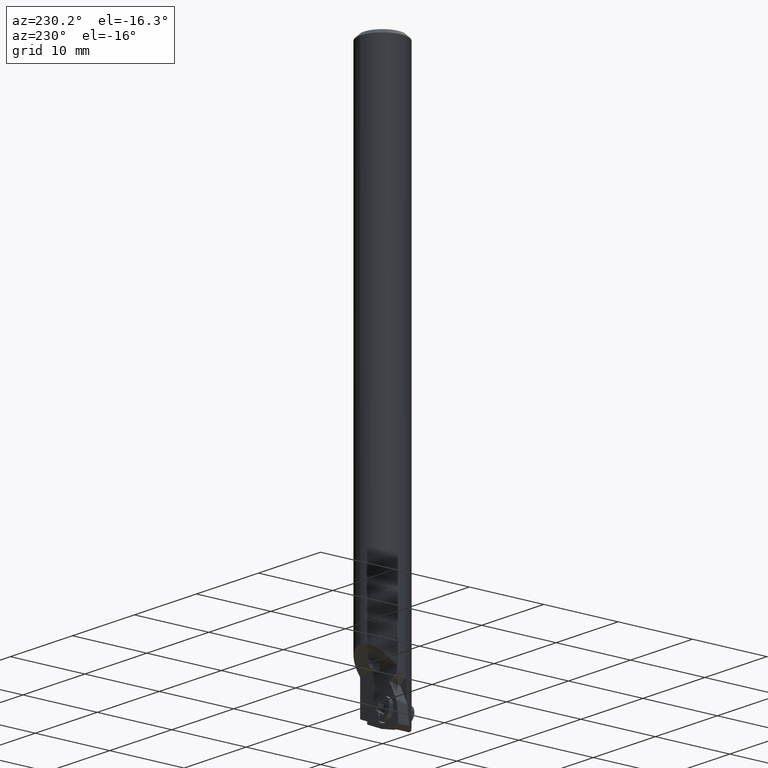
[diagram: clean part render]
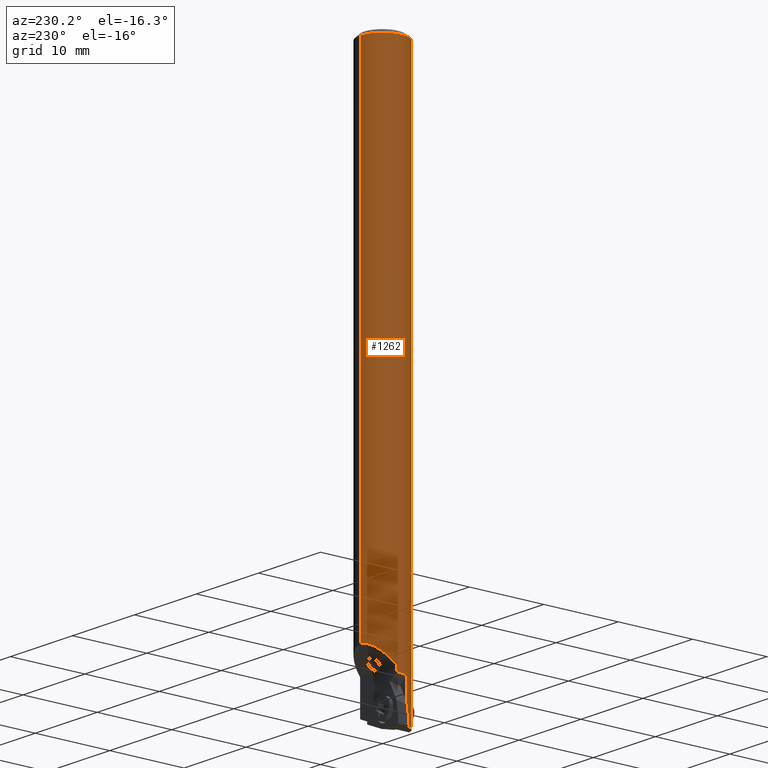
[diagram: same view with one face highlighted and labeled with its STEP entity id]
A machine part, auxiliary view. The second image highlights one B-rep face of the part: STEP entity #1262.
In plain terms, the highlighted cylindrical surface (edge-blend (fillet) strip) has radius 3 mm, axis along (-0, -0, 1).
Its self-contained STEP definition (entity closure, byte-faithful):
#574=VERTEX_POINT('NONE',#1597);
#608=VERTEX_POINT('NONE',#1633);
#616=EDGE_CURVE('NONE',#700,#1166,#1641,.T.);
#634=EDGE_CURVE('NONE',#960,#608,#1660,.T.);
#636=EDGE_CURVE('NONE',#870,#574,#1662,.T.);
#668=EDGE_CURVE('NONE',#1002,#870,#1699,.T.);
#688=EDGE_CURVE('NONE',#1072,#1002,#1719,.T.);
#700=VERTEX_POINT('NONE',#1733);
#848=VERTEX_POINT('NONE',#1900);
#870=VERTEX_POINT('NONE',#1924);
#886=EDGE_CURVE('NONE',#1230,#960,#1941,.T.);
#960=VERTEX_POINT('NONE',#2020);
#1002=VERTEX_POINT('NONE',#2070);
#1072=VERTEX_POINT('NONE',#2147);
#1092=EDGE_CURVE('NONE',#1294,#1192,#2171,.T.);
#1144=EDGE_CURVE('NONE',#1072,#608,#2227,.T.);
#1166=VERTEX_POINT('NONE',#2251);
#1192=VERTEX_POINT('NONE',#2282);
#1230=VERTEX_POINT('NONE',#2321);
#1262=ADVANCED_FACE('NONE',(#2355,#2356),#2357,.T.);
#1278=EDGE_CURVE('NONE',#1192,#1294,#2374,.T.);
#1294=VERTEX_POINT('NONE',#2391);
#1306=EDGE_CURVE('NONE',#574,#1166,#2404,.T.);
#1320=EDGE_CURVE('NONE',#848,#700,#2418,.T.);
#1434=EDGE_CURVE('NONE',#1230,#848,#2544,.T.);
#1597=CARTESIAN_POINT('',(0.0,2.99999999999999,-0.5));
#1633=CARTESIAN_POINT('',(-2.99958330439413,-0.05,-69.2103974511725));
#1641=LINE('',#2800,#2801);
#1660=(B_SPLINE_CURVE(3,(#2828,#2829,#2830,#2831),.UNSPECIFIED.,.F.,.F.)B_SPLINE_CURVE_WITH_KNOTS((4,4),(5.99591720875879,6.26651786881151),.UNSPECIFIED.)RATIONAL_B_SPLINE_CURVE((1.0,0.993907243336521,0.993907243336521,1.0))BOUNDED_CURVE()REPRESENTATION_ITEM('')GEOMETRIC_REPRESENTATION_ITEM()CURVE());
#1662=LINE('',#2840,#2841);
#1699=(B_SPLINE_CURVE(3,(#2902,#2903,#2904,#2905),.UNSPECIFIED.,.F.,.F.)B_SPLINE_CURVE_WITH_KNOTS((4,4),(4.89676517142066,6.28318530717959),.UNSPECIFIED.)RATIONAL_B_SPLINE_CURVE((1.0,0.846132478187304,0.846132478187304,1.0))BOUNDED_CURVE()REPRESENTATION_ITEM('')GEOMETRIC_REPRESENTATION_ITEM()CURVE());
#1719=LINE('',#2940,#2941);
#1733=CARTESIAN_POINT('',(-3.67394039744206E-016,-3.0,-74.2129260060728));
#1900=CARTESIAN_POINT('',(-0.858196446337212,-2.87463021265244,-74.5772087849035));
#1924=CARTESIAN_POINT('',(0.0,3.0,-65.983437030462));
#1941=LINE('',#3242,#3243);
#2020=CARTESIAN_POINT('',(-2.87706447616316,-0.85,-69.3027220103998));
#2070=CARTESIAN_POINT('',(-2.94915242061173,0.55,-68.433437030462));
#2147=CARTESIAN_POINT('',(-2.94915242061172,0.55,-69.1628021451641));
#2171=B_SPLINE_CURVE_WITH_KNOTS('',3,(#3561,#3562,#3563,#3564,#3565,#3566,#3567,#3568,#3569,#3570,#3571,#3572,#3573,#3574,#3575,#3576,#3577,#3578),.UNSPECIFIED.,.F.,.F.,(4,2,2,2,2,2,2,2,4),(0.00258878492132161,0.00291969677650896,0.00325060863169631,0.00358152048688366,0.00391243234207101,0.00424334419725836,0.00457425605244571,0.00490516790763307,0.00523607976282042),.UNSPECIFIED.);
#2227=(B_SPLINE_CURVE(3,(#3664,#3665,#3666,#3667),.UNSPECIFIED.,.F.,.F.)B_SPLINE_CURVE_WITH_KNOTS((4,4),(0.00272934735534019,0.203772976759377),.UNSPECIFIED.)RATIONAL_B_SPLINE_CURVE((1.0,0.996634623513801,0.996634623513801,1.0))BOUNDED_CURVE()REPRESENTATION_ITEM('')GEOMETRIC_REPRESENTATION_ITEM()CURVE());
#2251=CARTESIAN_POINT('',(-3.67394039744205E-016,-2.99999999999999,-0.5));
#2282=CARTESIAN_POINT('',(-0.552130571626169,-2.94875428475751,-73.3547932892828));
#2321=CARTESIAN_POINT('',(-2.87706447616316,-0.85,-74.6830131750122));
#2355=FACE_OUTER_BOUND('',#3846,.T.);
#2356=FACE_BOUND('',#3847,.T.);
#2357=CYLINDRICAL_SURFACE('',#3848,3.0);
#2374=B_SPLINE_CURVE_WITH_KNOTS('',3,(#3868,#3869,#3870,#3871,#3872,#3873,#3874,#3875,#3876,#3877,#3878,#3879,#3880,#3881,#3882,#3883),.UNSPECIFIED.,.F.,.F.,(4,2,2,2,2,2,2,4),(1.0842021724855E-019,0.000323598115165201,0.000647196230330402,0.000970794345495603,0.0012943924606608,0.00161799057582601,0.00194158869099121,0.00258878492132161),.UNSPECIFIED.);
#2391=CARTESIAN_POINT('',(-1.64332794772617,-2.50987514753665,-72.1846273666921));
#2404=CIRCLE('',#3930,2.99999999999999);
#2418=(B_SPLINE_CURVE(3,(#3949,#3950,#3951,#3952),.UNSPECIFIED.,.F.,.F.)B_SPLINE_CURVE_WITH_KNOTS((4,4),(4.4222707860418,4.71238898038469),.UNSPECIFIED.)RATIONAL_B_SPLINE_CURVE((1.0,0.992998243367064,0.992998243367064,1.0))BOUNDED_CURVE()REPRESENTATION_ITEM('')GEOMETRIC_REPRESENTATION_ITEM()CURVE());
#2544=(B_SPLINE_CURVE(3,(#4163,#4164,#4165,#4166),.UNSPECIFIED.,.F.,.F.)B_SPLINE_CURVE_WITH_KNOTS((4,4),(3.42886075201059,4.4222707860418),.UNSPECIFIED.)RATIONAL_B_SPLINE_CURVE((1.0,0.919438329406348,0.919438329406348,1.0))BOUNDED_CURVE()REPRESENTATION_ITEM('')GEOMETRIC_REPRESENTATION_ITEM()CURVE());
#2800=CARTESIAN_POINT('',(-3.67394039744206E-016,-3.0,17.8735926305015));
#2801=VECTOR('',#4407,1000.0);
#2828=CARTESIAN_POINT('',(-2.87706447616316,-0.85,-69.3027220103998));
#2829=CARTESIAN_POINT('',(-2.95396951787015,-0.589693219372905,-69.2447699047482));
#2830=CARTESIAN_POINT('',(-2.99505947841136,-0.32139185779768,-69.2138063985638));
#2831=CARTESIAN_POINT('',(-2.99958330439413,-0.05,-69.2103974511725));
#2840=CARTESIAN_POINT('',(0.0,3.0,17.8735926305015));
#2841=VECTOR('',#4429,1000.0);
#2902=CARTESIAN_POINT('',(-2.94915242061173,0.55,-68.433437030462));
#2903=CARTESIAN_POINT('',(-2.67224124590977,2.03482411121219,-66.9486129192499));
#2904=CARTESIAN_POINT('',(-1.51042458928338,3.0,-65.983437030462));
#2905=CARTESIAN_POINT('',(0.0,3.0,-65.983437030462));
#2940=CARTESIAN_POINT('',(-2.94915242061173,0.55,17.8735926305015));
#2941=VECTOR('',#4493,1000.0);
#3242=CARTESIAN_POINT('',(-2.87706447616316,-0.85,17.8735926305015));
#3243=VECTOR('',#4808,1000.0);
#3561=CARTESIAN_POINT('',(-1.64332794772617,-2.50987514753665,-72.1846273666921));
#3562=CARTESIAN_POINT('',(-1.71594084702004,-2.46233222218749,-72.2523399907319));
#3563=CARTESIAN_POINT('',(-1.77804922805384,-2.41695636109029,-72.3358746565189));
#3564=CARTESIAN_POINT('',(-1.86702766013935,-2.34890289817869,-72.5263410196168));
#3565=CARTESIAN_POINT('',(-1.89402521903565,-2.32651823290054,-72.6345502289205));
#3566=CARTESIAN_POINT('',(-1.90070983113662,-2.32106026552141,-72.8567603660637));
#3567=CARTESIAN_POINT('',(-1.87989832215005,-2.33848409977098,-72.9686442079651));
#3568=CARTESIAN_POINT('',(-1.8005181755634,-2.40013747230656,-73.1665111225939));
#3569=CARTESIAN_POINT('',(-1.74250877480115,-2.44352064039819,-73.2538725996252));
#3570=CARTESIAN_POINT('',(-1.60230660937251,-2.53766496604106,-73.3986423009191));
#3571=CARTESIAN_POINT('',(-1.5205896389753,-2.58814925809764,-73.4561411287729));
#3572=CARTESIAN_POINT('',(-1.33862853872191,-2.68677931130743,-73.5391033887849));
#3573=CARTESIAN_POINT('',(-1.24101004139264,-2.73354818240423,-73.5635025304312));
#3574=CARTESIAN_POINT('',(-1.0350151242743,-2.81800200157599,-73.5738884054619));
#3575=CARTESIAN_POINT('',(-0.930804940511222,-2.85390741600062,-73.559507364643));
#3576=CARTESIAN_POINT('',(-0.727522651569301,-2.9123695108686,-73.4870597231587));
#3577=CARTESIAN_POINT('',(-0.633215716272321,-2.93357174225294,-73.430406409927));
#3578=CARTESIAN_POINT('',(-0.552130571626169,-2.94875428475751,-73.3547932892828));
#3664=CARTESIAN_POINT('',(-2.94915242061172,0.55,-69.1628021451641));
#3665=CARTESIAN_POINT('',(-2.98607262831619,0.352030327416167,-69.1632236884244));
#3666=CARTESIAN_POINT('',(-3.00293968691272,0.151354979318319,-69.1791423627595));
#3667=CARTESIAN_POINT('',(-2.99958330439413,-0.05,-69.2103974511725));
#3846=EDGE_LOOP('',(#5297,#5298,#5299,#5300,#5301,#5302,#5303,#5304,#5305,#5306));
#3847=EDGE_LOOP('',(#5307,#5308));
#3848=AXIS2_PLACEMENT_3D('',#5309,#5310,#5311);
#3868=CARTESIAN_POINT('',(-0.552130571626169,-2.94875428475751,-73.3547932892828));
#3869=CARTESIAN_POINT('',(-0.472837552763073,-2.96360126609371,-73.2808513529676));
#3870=CARTESIAN_POINT('',(-0.40939614804292,-2.97226011404865,-73.1915046827885));
#3871=CARTESIAN_POINT('',(-0.322066255684514,-2.98298654347388,-72.9934509245526));
#3872=CARTESIAN_POINT('',(-0.298754834664917,-2.98508735921993,-72.8849565551313));
#3873=CARTESIAN_POINT('',(-0.296771278525537,-2.98528521278161,-72.6691710962218));
#3874=CARTESIAN_POINT('',(-0.318192707561239,-2.98337340540632,-72.5600424735762));
#3875=CARTESIAN_POINT('',(-0.40157370448266,-2.97329817460323,-72.3610475229393));
#3876=CARTESIAN_POINT('',(-0.463842984298286,-2.96496934118697,-72.2699131628547));
#3877=CARTESIAN_POINT('',(-0.618657818124717,-2.9365721534358,-72.1200184238691));
#3878=CARTESIAN_POINT('',(-0.710181311900454,-2.91651473798045,-72.0619542293837));
#3879=CARTESIAN_POINT('',(-0.906744646176376,-2.86150831892209,-71.9857224554139));
#3880=CARTESIAN_POINT('',(-1.00991323035983,-2.82697446868307,-71.9682142285392));
#3881=CARTESIAN_POINT('',(-1.31148563802969,-2.70681416780113,-71.9730053509376));
#3882=CARTESIAN_POINT('',(-1.50131189735,-2.60285943196924,-72.0521952572427));
#3883=CARTESIAN_POINT('',(-1.64332794772617,-2.50987514753665,-72.1846273666921));
#3930=AXIS2_PLACEMENT_3D('',#5346,#5347,#5348);
#3949=CARTESIAN_POINT('',(-0.858196446337212,-2.87463021265244,-74.5772087849035));
#3950=CARTESIAN_POINT('',(-0.579222872619392,-2.95791540479049,-74.4587915284723));
#3951=CARTESIAN_POINT('',(-0.291140306488751,-3.0,-74.3365077341608));
#3952=CARTESIAN_POINT('',(-3.67394039744206E-016,-3.0,-74.2129260060728));
#4163=CARTESIAN_POINT('',(-2.87706447616316,-0.85,-74.6830131750122));
#4164=CARTESIAN_POINT('',(-2.58336950284357,-1.84409338184174,-74.6676212736739));
#4165=CARTESIAN_POINT('',(-1.85144873293561,-2.57810317452305,-74.6292629315119));
#4166=CARTESIAN_POINT('',(-0.858196446337212,-2.87463021265244,-74.5772087849035));
#4407=DIRECTION('',(0.0,-0.0,1.0));
#4429=DIRECTION('',(0.0,-0.0,1.0));
#4493=DIRECTION('',(0.0,-0.0,1.0));
#4808=DIRECTION('',(0.0,-0.0,1.0));
#5297=ORIENTED_EDGE('',*,*,#1320,.T.);
#5298=ORIENTED_EDGE('',*,*,#616,.T.);
#5299=ORIENTED_EDGE('',*,*,#1306,.F.);
#5300=ORIENTED_EDGE('',*,*,#636,.F.);
#5301=ORIENTED_EDGE('',*,*,#668,.F.);
#5302=ORIENTED_EDGE('',*,*,#688,.F.);
#5303=ORIENTED_EDGE('',*,*,#1144,.T.);
#5304=ORIENTED_EDGE('',*,*,#634,.F.);
#5305=ORIENTED_EDGE('',*,*,#886,.F.);
#5306=ORIENTED_EDGE('',*,*,#1434,.T.);
#5307=ORIENTED_EDGE('',*,*,#1278,.F.);
#5308=ORIENTED_EDGE('',*,*,#1092,.F.);
#5309=CARTESIAN_POINT('',(0.0,0.0,17.8735926305015));
#5310=DIRECTION('',(-0.0,-0.0,1.0));
#5311=DIRECTION('',(0.0,1.0,0.0));
#5346=CARTESIAN_POINT('',(0.0,0.0,-0.5));
#5347=DIRECTION('',(0.0,-0.0,1.0));
#5348=DIRECTION('',(0.0,1.0,0.0));